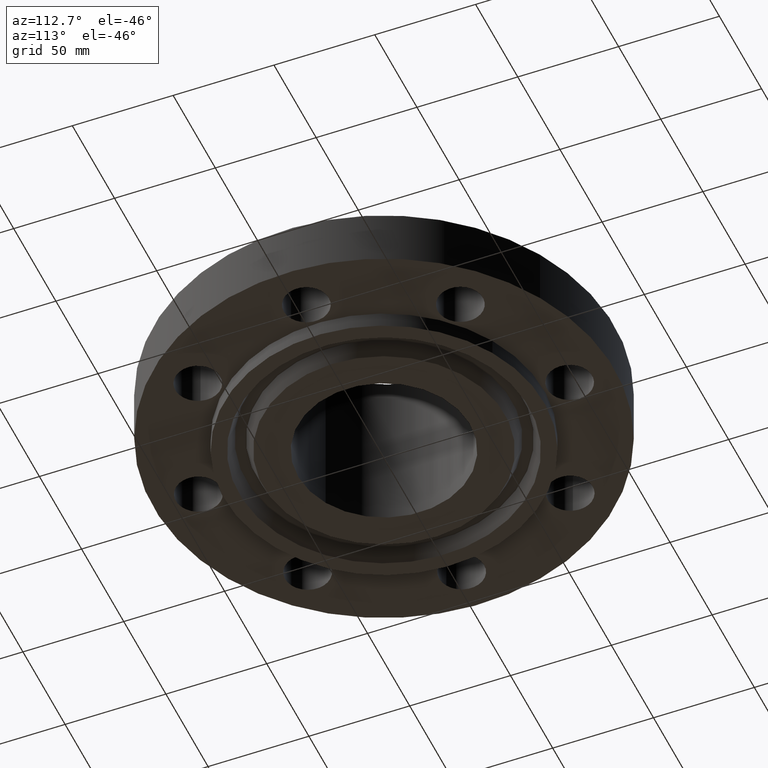
[diagram: clean part render]
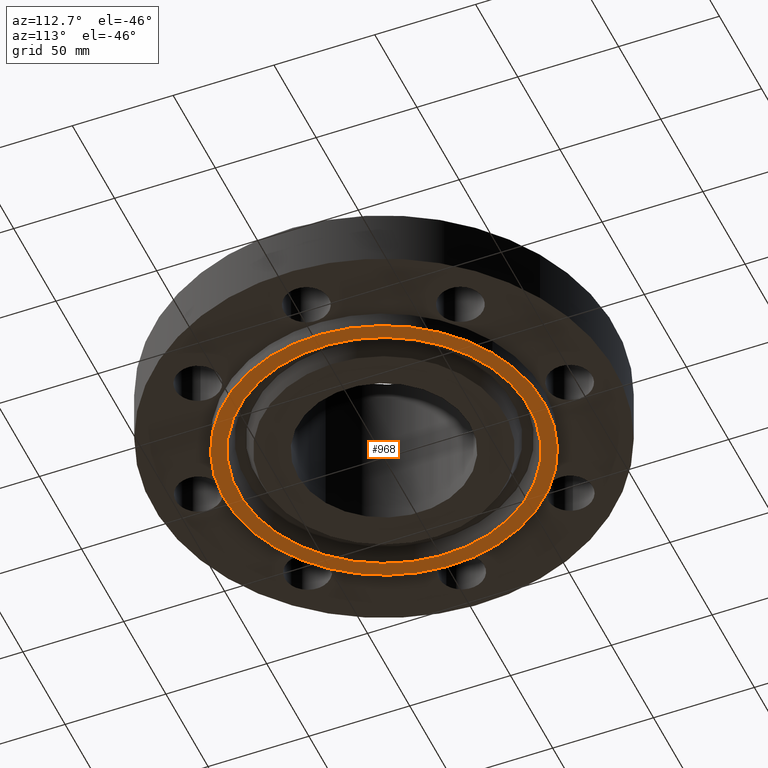
[diagram: same view with one face highlighted and labeled with its STEP entity id]
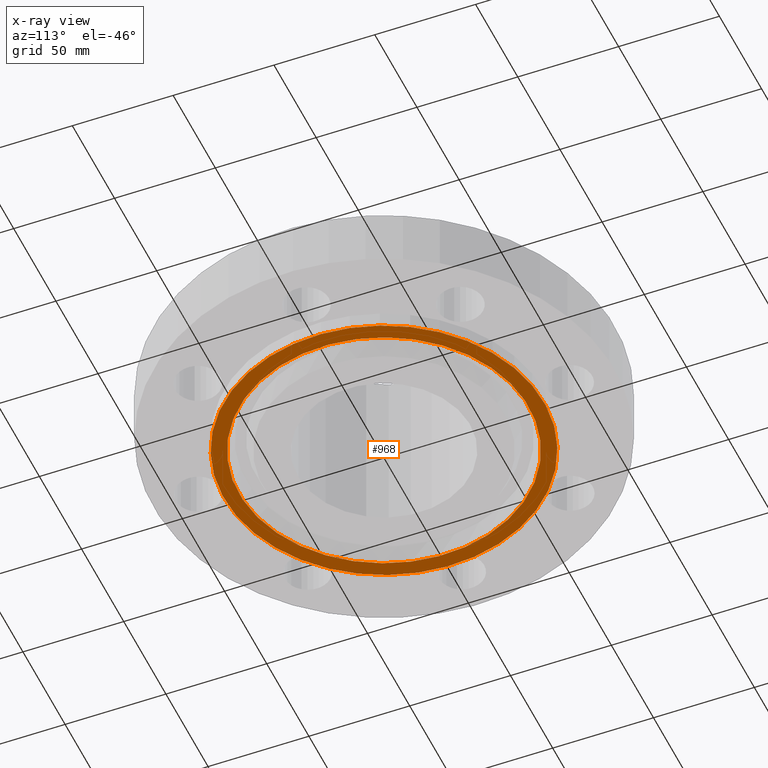
[diagram: x-ray of the same camera — body ghosted, the highlighted face saturated]
A machine part, auxiliary view. The second image highlights one B-rep face of the part: STEP entity #968.
The next image is the same camera in x-ray: the body ghosted, the highlighted face saturated — about 0% of this face is hidden behind the body in this view.
In plain terms, the highlighted planar face has unit normal (0, 0, -1).
Its self-contained STEP definition (entity closure, byte-faithful):
#446=AXIS2_PLACEMENT_3D('Circle Axis2P3D',#444,#445,$) ;
#481=AXIS2_PLACEMENT_3D('Circle Axis2P3D',#479,#480,$) ;
#944=AXIS2_PLACEMENT_3D('Plane Axis2P3D',#941,#942,#943) ;
#952=AXIS2_PLACEMENT_3D('Circle Axis2P3D',#950,#951,$) ;
#961=AXIS2_PLACEMENT_3D('Circle Axis2P3D',#959,#960,$) ;
#444=CARTESIAN_POINT('Axis2P3D Location',(0.,0.,-0.313000000001)) ;
#448=CARTESIAN_POINT('Vertex',(-1.49820480814,-2.74244550592,-0.313000000001)) ;
#450=CARTESIAN_POINT('Vertex',(1.49820480814,2.74244550592,-0.313000000001)) ;
#479=CARTESIAN_POINT('Axis2P3D Location',(0.,0.,-0.313000000001)) ;
#941=CARTESIAN_POINT('Axis2P3D Location',(0.,1.68200000001,-0.313000000001)) ;
#950=CARTESIAN_POINT('Axis2P3D Location',(-6.99353086378E-016,-8.39223703654E-016,-0.313000000001)) ;
#954=CARTESIAN_POINT('Vertex',(1.35605513595,-2.48224227632,-0.313000000001)) ;
#956=CARTESIAN_POINT('Vertex',(-1.35605513595,2.48224227632,-0.313000000001)) ;
#959=CARTESIAN_POINT('Axis2P3D Location',(1.39870617276E-016,5.59482469102E-016,-0.313000000001)) ;
#445=DIRECTION('Axis2P3D Direction',(0.,0.,-0.0393700787402)) ;
#480=DIRECTION('Axis2P3D Direction',(0.,0.,-0.0393700787402)) ;
#942=DIRECTION('Axis2P3D Direction',(0.,0.,-0.0393700787402)) ;
#943=DIRECTION('Axis2P3D XDirection',(0.0393700787402,0.,0.)) ;
#951=DIRECTION('Axis2P3D Direction',(0.,0.,-0.0393700787402)) ;
#960=DIRECTION('Axis2P3D Direction',(0.,0.,-0.0393700787402)) ;
#947=ORIENTED_EDGE('',*,*,#452,.T.) ;
#948=ORIENTED_EDGE('',*,*,#483,.T.) ;
#965=ORIENTED_EDGE('',*,*,#958,.F.) ;
#966=ORIENTED_EDGE('',*,*,#963,.F.) ;
#967=FACE_BOUND('',#964,.T.) ;
#968=ADVANCED_FACE('PartBody',(#949,#967),#945,.T.) ;
#447=CIRCLE('generated circle',#446,3.12500000001) ;
#482=CIRCLE('generated circle',#481,3.12500000001) ;
#953=CIRCLE('generated circle',#952,2.82850000001) ;
#962=CIRCLE('generated circle',#961,2.82850000001) ;
#452=EDGE_CURVE('',#449,#451,#447,.T.) ;
#483=EDGE_CURVE('',#451,#449,#482,.T.) ;
#958=EDGE_CURVE('',#955,#957,#953,.T.) ;
#963=EDGE_CURVE('',#957,#955,#962,.T.) ;
#946=EDGE_LOOP('',(#947,#948)) ;
#964=EDGE_LOOP('',(#965,#966)) ;
#949=FACE_OUTER_BOUND('',#946,.T.) ;
#945=PLANE('',#944) ;
#449=VERTEX_POINT('',#448) ;
#451=VERTEX_POINT('',#450) ;
#955=VERTEX_POINT('',#954) ;
#957=VERTEX_POINT('',#956) ;